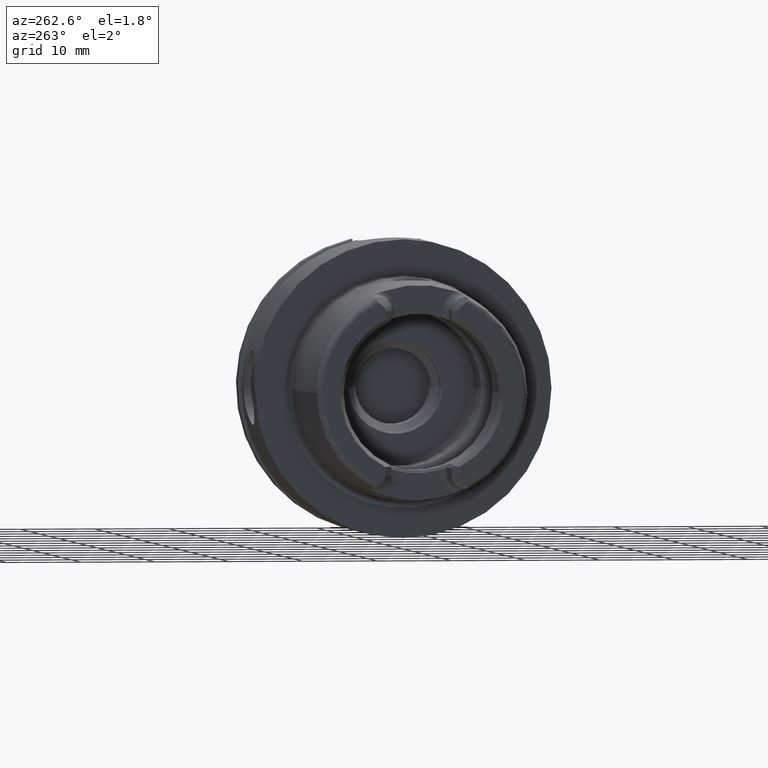
[diagram: clean part render]
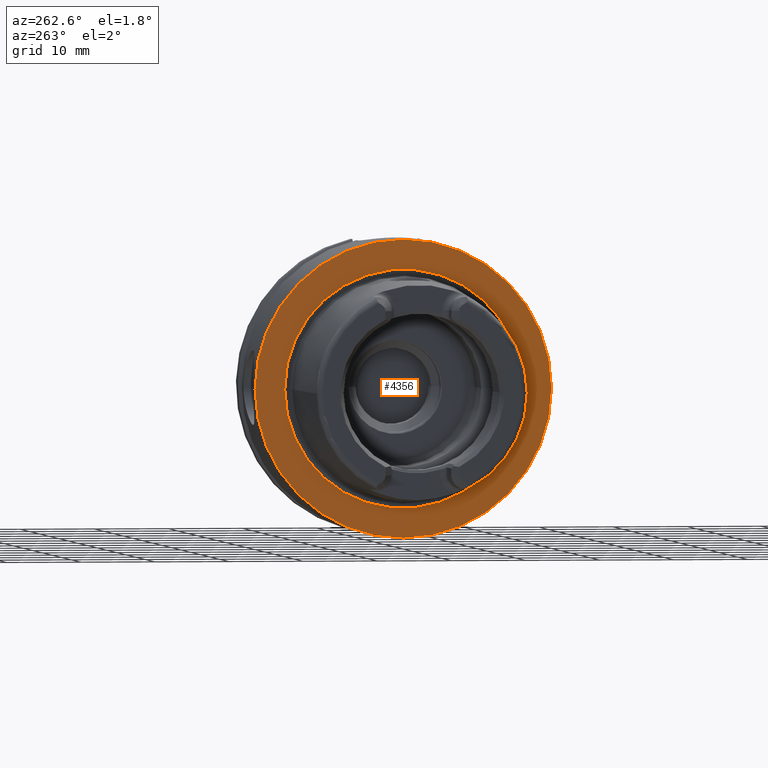
[diagram: same view with one face highlighted and labeled with its STEP entity id]
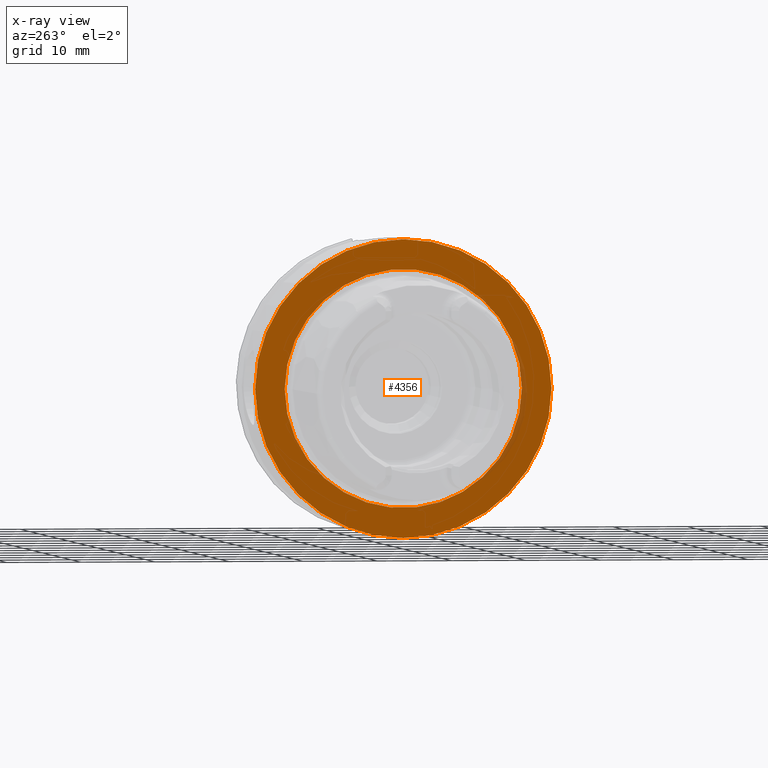
[diagram: x-ray of the same camera — body ghosted, the highlighted face saturated]
A machine part, auxiliary view. The second image highlights one B-rep face of the part: STEP entity #4356.
The next image is the same camera in x-ray: the body ghosted, the highlighted face saturated — about 3% of this face is hidden behind the body in this view.
In plain terms, the highlighted planar face has unit normal (1, 0, 0).
Its self-contained STEP definition (entity closure, byte-faithful):
#848=CARTESIAN_POINT('',(-1.065814103640E-14,0.E0,0.E0));
#849=DIRECTION('',(1.E0,0.E0,0.E0));
#850=DIRECTION('',(0.E0,1.E0,0.E0));
#851=AXIS2_PLACEMENT_3D('',#848,#849,#850);
#853=CARTESIAN_POINT('',(-1.065814103640E-14,0.E0,0.E0));
#854=DIRECTION('',(-1.E0,0.E0,0.E0));
#855=DIRECTION('',(0.E0,1.E0,0.E0));
#856=AXIS2_PLACEMENT_3D('',#853,#854,#855);
#858=CARTESIAN_POINT('',(0.E0,0.E0,0.E0));
#859=DIRECTION('',(-1.E0,0.E0,0.E0));
#860=DIRECTION('',(0.E0,-1.E0,0.E0));
#861=AXIS2_PLACEMENT_3D('',#858,#859,#860);
#863=CARTESIAN_POINT('',(0.E0,0.E0,0.E0));
#864=DIRECTION('',(-1.E0,0.E0,0.E0));
#865=DIRECTION('',(0.E0,1.E0,0.E0));
#866=AXIS2_PLACEMENT_3D('',#863,#864,#865);
#2873=CARTESIAN_POINT('',(0.E0,-1.60037E1,0.E0));
#2874=VERTEX_POINT('',#2873);
#2875=CARTESIAN_POINT('',(0.E0,1.60037E1,0.E0));
#2876=VERTEX_POINT('',#2875);
#3223=CARTESIAN_POINT('',(-1.065814103640E-14,2.E1,0.E0));
#3224=CARTESIAN_POINT('',(-1.065814103640E-14,-2.E1,0.E0));
#3225=VERTEX_POINT('',#3223);
#3226=VERTEX_POINT('',#3224);
#4341=CARTESIAN_POINT('',(0.E0,0.E0,0.E0));
#4342=DIRECTION('',(1.E0,0.E0,0.E0));
#4343=DIRECTION('',(0.E0,-1.E0,0.E0));
#4344=AXIS2_PLACEMENT_3D('',#4341,#4342,#4343);
#4345=PLANE('',#4344);
#4347=ORIENTED_EDGE('',*,*,#4346,.T.);
#4349=ORIENTED_EDGE('',*,*,#4348,.F.);
#4350=EDGE_LOOP('',(#4347,#4349));
#4351=FACE_OUTER_BOUND('',#4350,.F.);
#4352=ORIENTED_EDGE('',*,*,#4336,.T.);
#4353=ORIENTED_EDGE('',*,*,#4320,.T.);
#4354=EDGE_LOOP('',(#4352,#4353));
#4355=FACE_BOUND('',#4354,.F.);
#4356=ADVANCED_FACE('',(#4351,#4355),#4345,.F.);
#852=CIRCLE('',#851,2.E1);
#857=CIRCLE('',#856,2.E1);
#862=CIRCLE('',#861,1.60037E1);
#867=CIRCLE('',#866,1.60037E1);
#4320=EDGE_CURVE('',#2876,#2874,#867,.T.);
#4336=EDGE_CURVE('',#2874,#2876,#862,.T.);
#4346=EDGE_CURVE('',#3225,#3226,#852,.T.);
#4348=EDGE_CURVE('',#3225,#3226,#857,.T.);